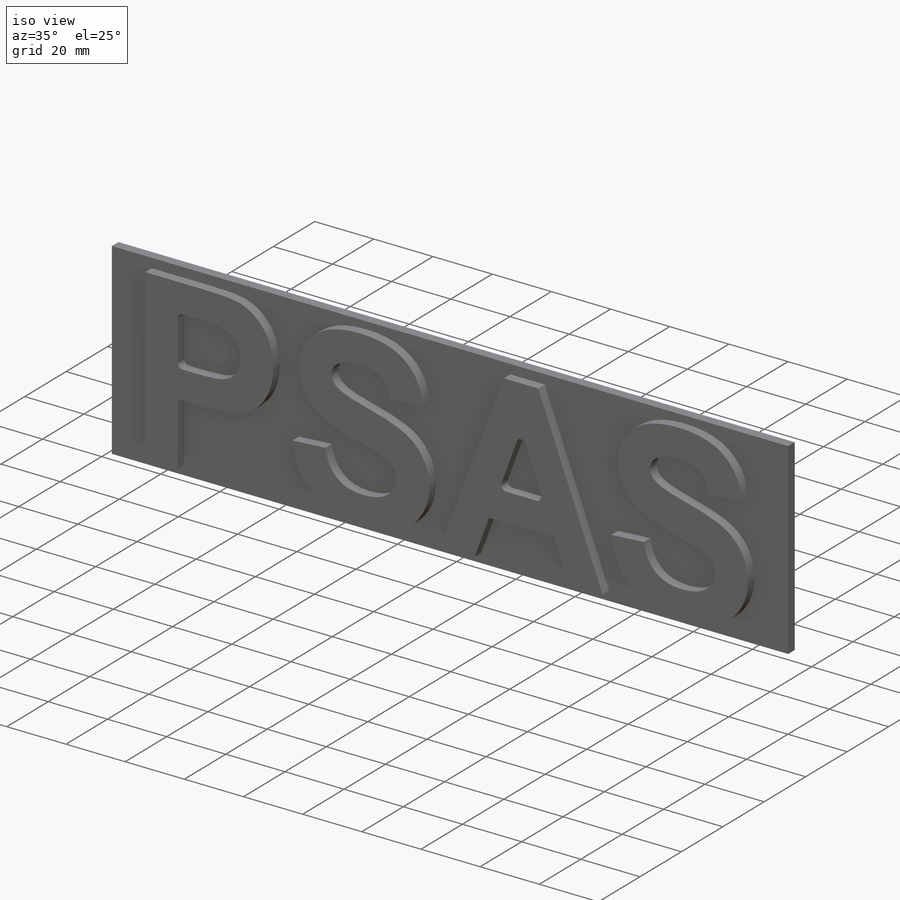
[diagram: iso view]
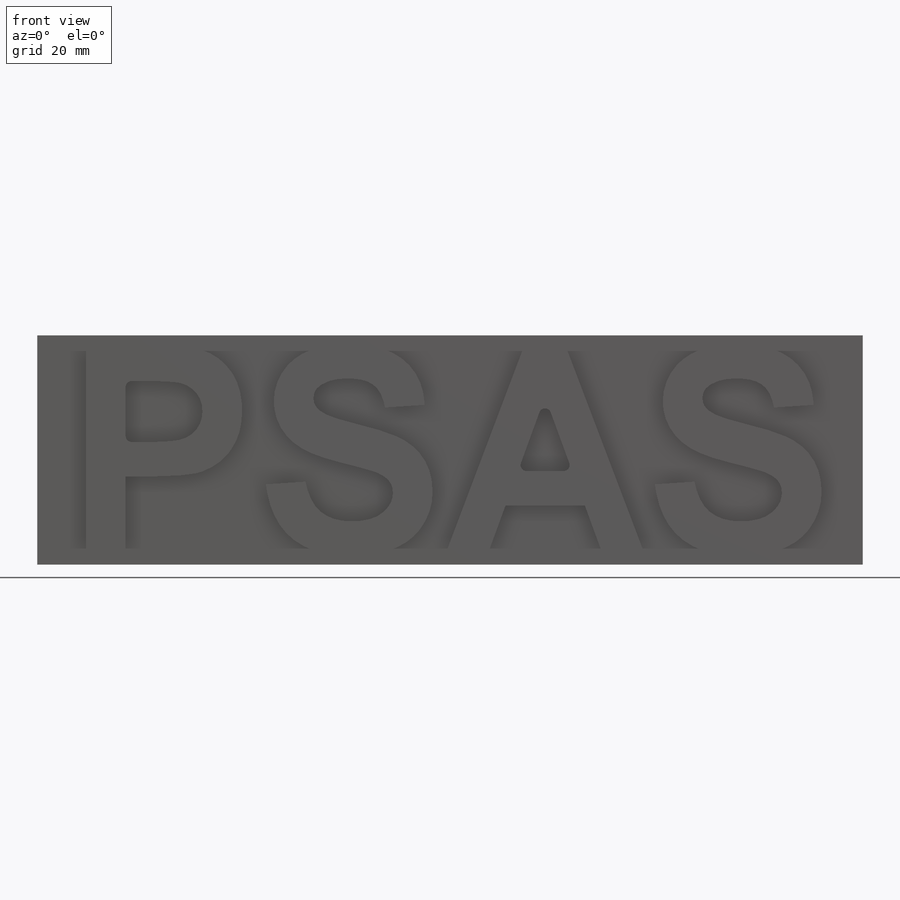
[diagram: front view]
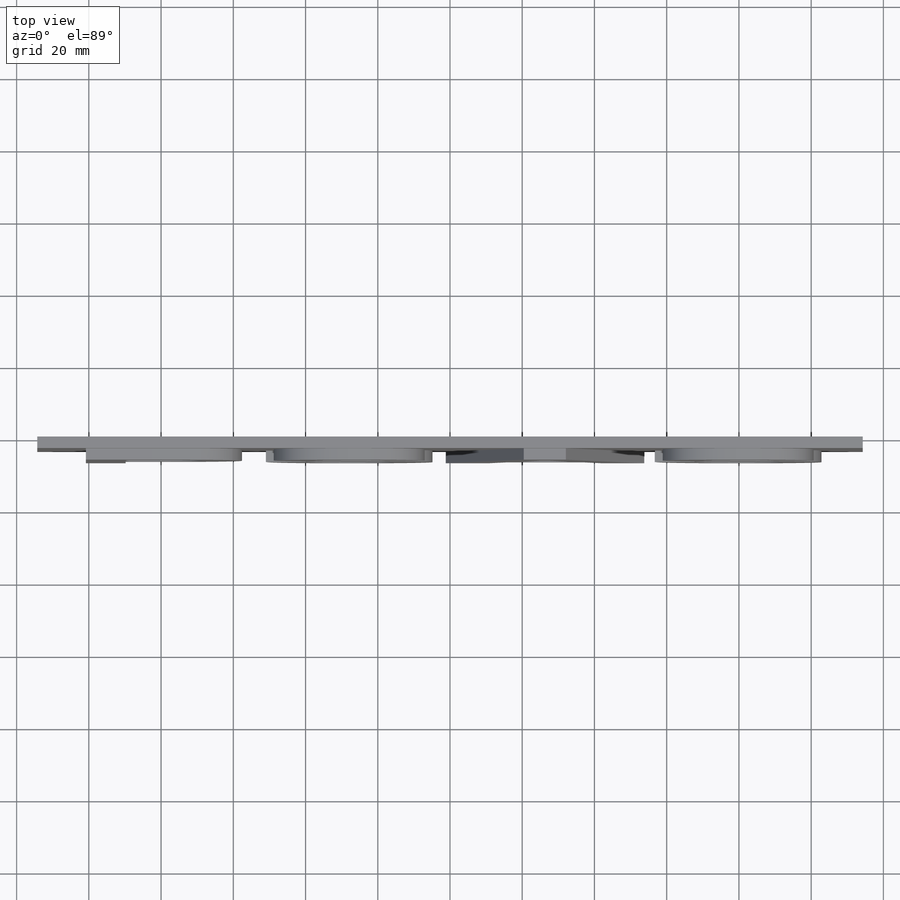
[diagram: top view]
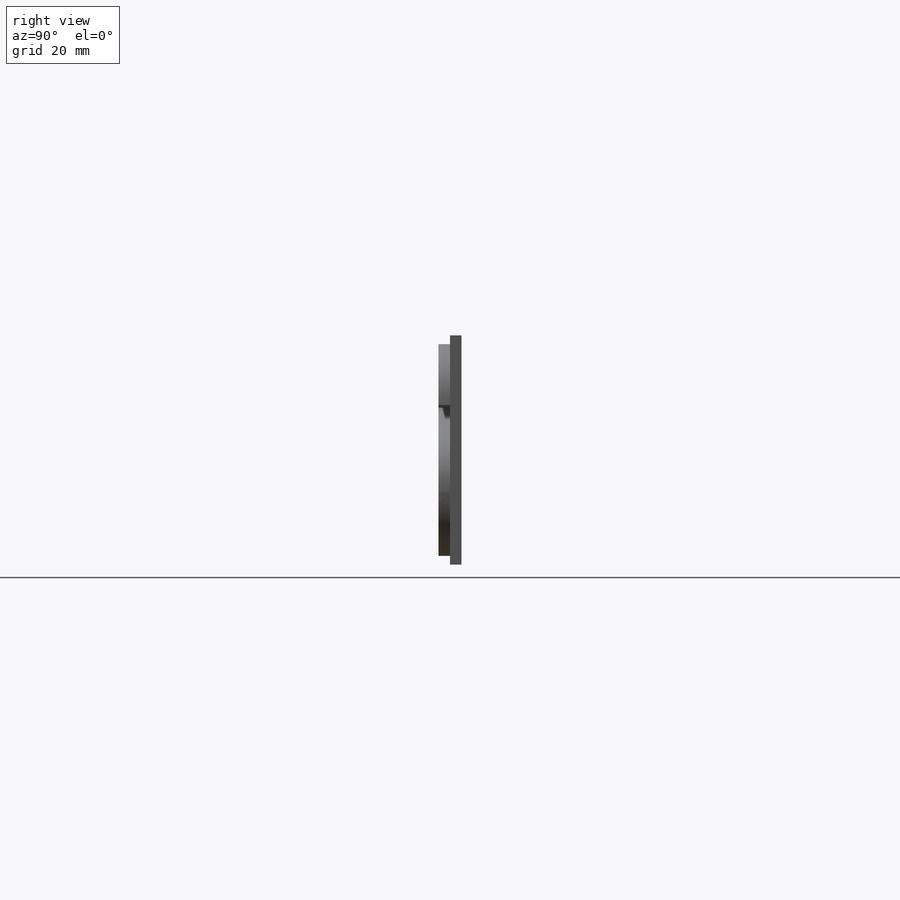
[diagram: right view]
SOLIDWORKS PART (.sldprt)
format: sldprt  version: not decoded by parser v0  size: 301,056 bytes
history: native  units: mm
features: sketch x3, material x1, extrude x1, cut_extrude x1, fillet x1 (+11 scaffold rows collapsed)
feature tree (18):
  scaffold x11  (default folders/planes/origin — collapsed)
  material  "Material <not specified>"
  sketch  "Sketch1"  dims[D1=63.5mm D2=228.6mm]
  extrude  "Boss-Extrude1"  Depth=6.35mm
  sketch  "Sketch2"  dims[c1.D1=6.858mm c1.D2=104.775mm c2.D1=3.175mm c2.D2=106.68mm]
  cut_extrude  "Cut-Extrude1"  Depth=3.175mm
  sketch  "Sketch3"  dims[D1=31.75mm]
  fillet  "Fillet1"  Radius=1.651mm
decode coverage: 6 of 6 modeling features carry decoded parameters
note: suppression state not decoded; provenance and decode notes live in map.json
